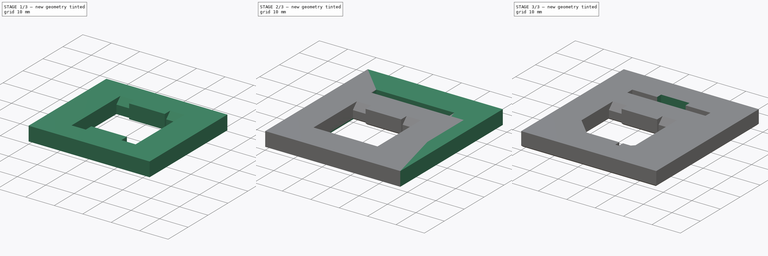
[diagram: build sequence overview — one tinted view per stage of 3, left to right]
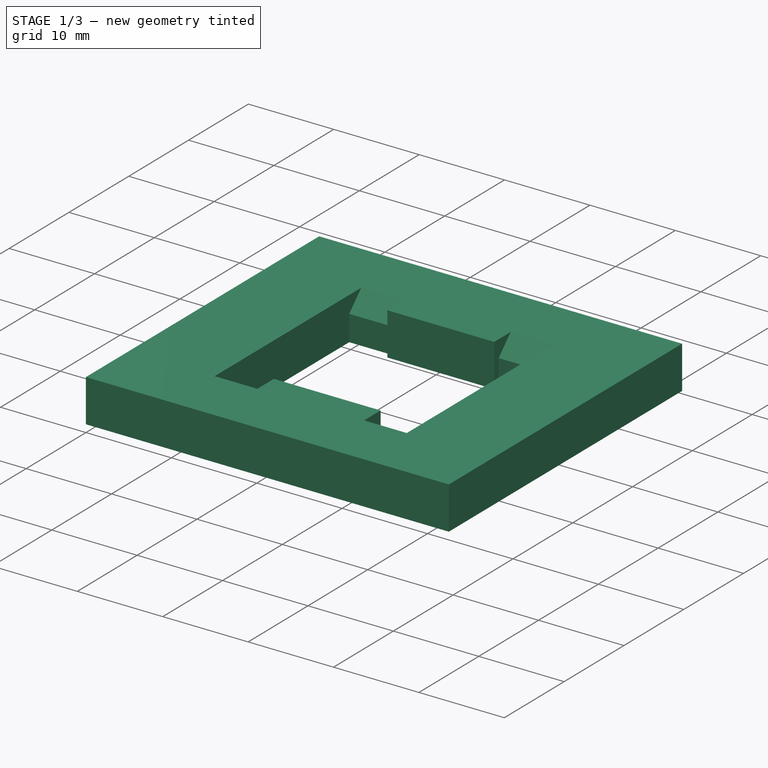
[diagram: stage 1 of 3 — iso view after this stage's code; geometry added in this stage tinted green]
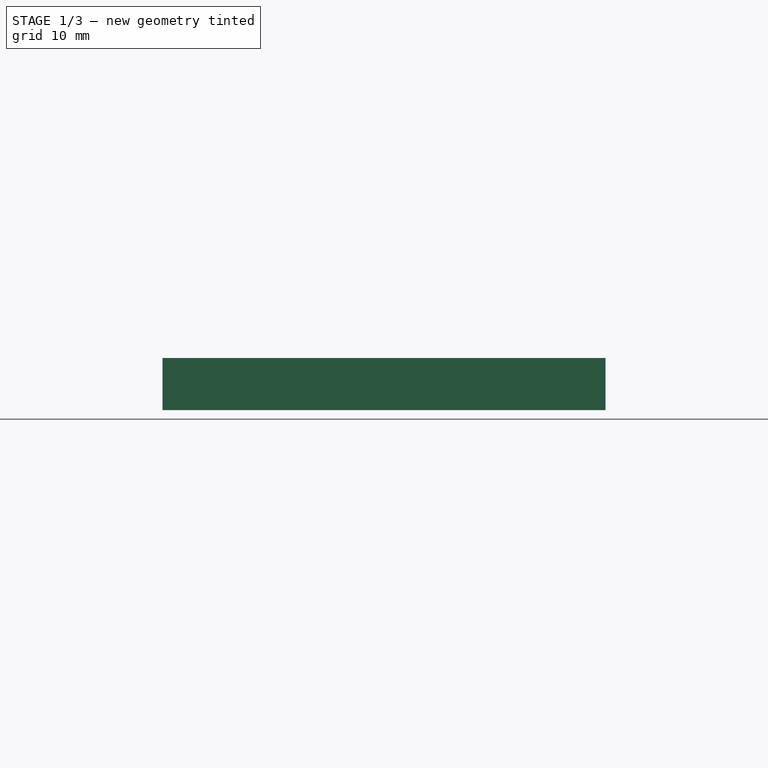
[diagram: stage 1 of 3 — front view after this stage's code; geometry added in this stage tinted green]
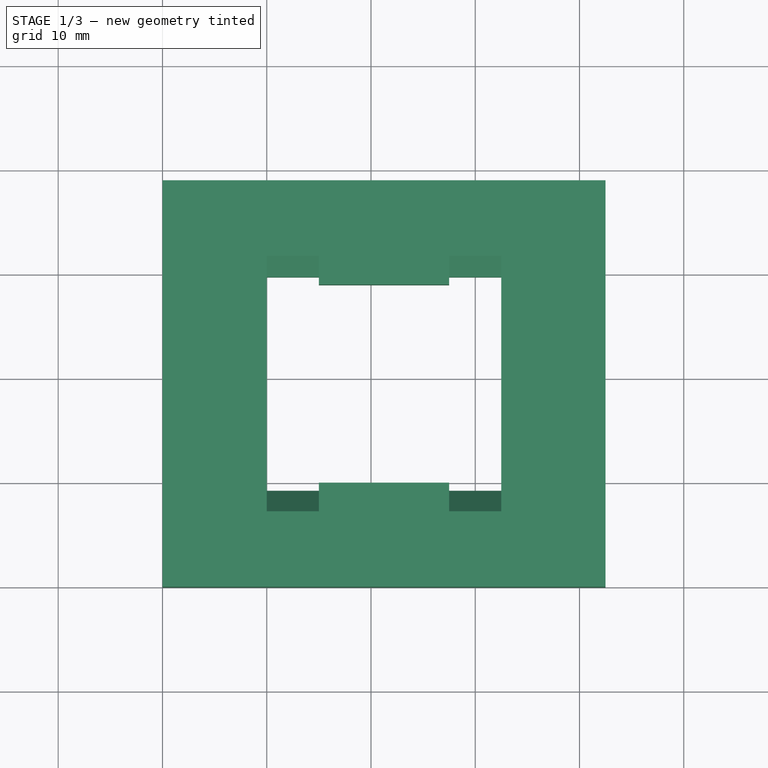
[diagram: stage 1 of 3 — top view after this stage's code; geometry added in this stage tinted green]
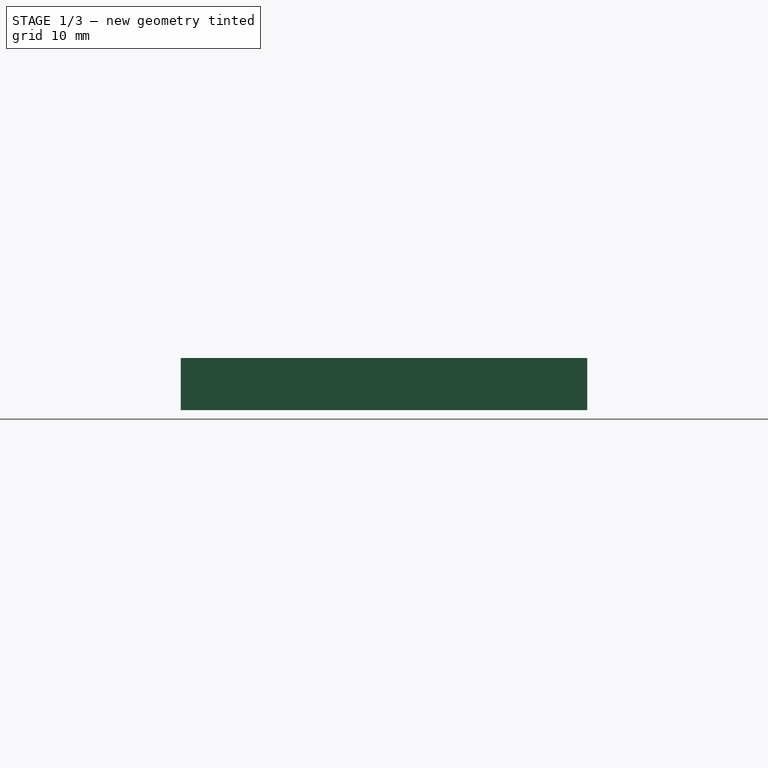
[diagram: stage 1 of 3 — right view after this stage's code; geometry added in this stage tinted green]
FCSTD DOCUMENT  (FreeCAD 0.19R24291 (Git))
Label: outlet-and-switch-size-test
License: All rights reserved
LicenseURL: http://en.wikipedia.org/wiki/All_rights_reserved
objects: Sketcher::SketchObject×4, PartDesign::Chamfer×4, PartDesign::Pad×2, PartDesign::Pocket×2, PartDesign::Body×2
note: 22 computed .brp shape members not serialized (recipe doc carries the construction recipe); baked Part::Feature solids carry a one-line shape summary decoded from their .brp

FEATURE [PartDesign::Body] Body  label="outlet"
  Group = -> [Sketch,Pad,Chamfer,Sketch001,Pocket,Chamfer001]
  Origin = -> Origin
  Tip = -> Chamfer001
FEATURE [Sketcher::SketchObject] Sketch002
  FullyConstrained = true
  MapMode = 5
  Support = -> [XY_Plane001]
  sketch-geometry (8):
    g0: LineSegment StartX=0 StartY=0 StartZ=0 EndX=22.5 EndY=0 EndZ=0
    g1: LineSegment StartX=22.5 StartY=0 StartZ=0 EndX=22.5 EndY=19 EndZ=0
    g2: LineSegment StartX=22.5 StartY=19 StartZ=0 EndX=0 EndY=19 EndZ=0
    g3: LineSegment StartX=0 StartY=19 StartZ=0 EndX=0 EndY=0 EndZ=0
    g4: LineSegment StartX=-10 StartY=29 StartZ=0 EndX=32.5 EndY=29 EndZ=0
    g5: LineSegment StartX=32.5 StartY=29 StartZ=0 EndX=32.5 EndY=-10 EndZ=0
    g6: LineSegment StartX=32.5 StartY=-10 StartZ=0 EndX=-10 EndY=-10 EndZ=0
    g7: LineSegment StartX=-10 StartY=-10 StartZ=0 EndX=-10 EndY=29 EndZ=0
  constraints (23):
    c: Coincident(g0,g1)
    c: Coincident(g1,g2)
    c: Coincident(g2,g3)
    c: Coincident(g3,g0)
    c: Horizontal(g0)
    c: Horizontal(g2)
    c: Vertical(g1)
    c: Vertical(g3)
    c: Coincident(g0,g-1)
    c: DistanceX(g2,g2) = 22.5
    c: DistanceY(g1,g1) = 19
    c: Coincident(g4,g5)
    c: Coincident(g5,g6)
    c: Coincident(g6,g7)
    c: Coincident(g7,g4)
    c: Horizontal(g4)
    c: Horizontal(g6)
    c: Vertical(g5)
    c: Vertical(g7)
    c: DistanceX(g4,g2) = 10
    c: DistanceX(g0,g5) = 10
    c: DistanceY(g1,g4) = 10
    c: DistanceY(g6,g0) = 10
FEATURE [PartDesign::Pad] Pad001
  Direction = (1,1,1)
  Length = 5
  Length2 = 100
  Profile = -> Sketch002
  Type = 0
FEATURE [Sketcher::SketchObject] Sketch003
  ExternalGeometry = -> [Pad001]
  FullyConstrained = true
  MapMode = 5
  Placement = pos=(0,0,5) rot=(0,0,1;0rad)
  Support = -> [Pad001]
  sketch-geometry (16):
    g0: LineSegment StartX=0 StartY=19 StartZ=0 EndX=5 EndY=19 EndZ=0
    g1: LineSegment StartX=5 StartY=19 StartZ=0 EndX=5 EndY=19.75 EndZ=0
    g2: LineSegment StartX=5 StartY=19.75 StartZ=0 EndX=0 EndY=19.75 EndZ=0
    g3: LineSegment StartX=0 StartY=19.75 StartZ=0 EndX=0 EndY=19 EndZ=0
    g4: LineSegment StartX=22.5 StartY=19 StartZ=0 EndX=17.5 EndY=19 EndZ=0
    g5: LineSegment StartX=17.5 StartY=19 StartZ=0 EndX=17.5 EndY=19.75 EndZ=0
    g6: LineSegment StartX=17.5 StartY=19.75 StartZ=0 EndX=22.5 EndY=19.75 EndZ=0
    g7: LineSegment StartX=22.5 StartY=19.75 StartZ=0 EndX=22.5 EndY=19 EndZ=0
    g8: LineSegment StartX=0 StartY=0 StartZ=0 EndX=5 EndY=0 EndZ=0
    g9: LineSegment StartX=5 StartY=0 StartZ=0 EndX=5 EndY=-0.75 EndZ=0
    g10: LineSegment StartX=5 StartY=-0.75 StartZ=0 EndX=0 EndY=-0.75 EndZ=0
    g11: LineSegment StartX=0 StartY=-0.75 StartZ=0 EndX=0 EndY=0 EndZ=0
    g12: LineSegment StartX=22.5 StartY=0 StartZ=0 EndX=17.5 EndY=0 EndZ=0
    g13: LineSegment StartX=17.5 StartY=0 StartZ=0 EndX=17.5 EndY=-0.75 EndZ=0
    g14: LineSegment StartX=17.5 StartY=-0.75 StartZ=0 EndX=22.5 EndY=-0.75 EndZ=0
    g15: LineSegment StartX=22.5 StartY=-0.75 StartZ=0 EndX=22.5 EndY=0 EndZ=0
  constraints (44):
    c: Coincident(g0,g1)
    c: Coincident(g1,g2)
    c: Coincident(g2,g3)
    c: Coincident(g3,g0)
    c: Horizontal(g0)
    c: Horizontal(g2)
    c: Vertical(g1)
    c: Vertical(g3)
    c: Coincident(g0,g-3)
    c: Coincident(g4,g5)
    c: Coincident(g5,g6)
    c: Coincident(g6,g7)
    c: Coincident(g7,g4)
    c: Horizontal(g4)
    c: Horizontal(g6)
    c: Vertical(g5)
    c: Vertical(g7)
    c: Coincident(g4,g-3)
    c: Coincident(g8,g9)
    c: Coincident(g9,g10)
    c: Coincident(g10,g11)
    c: Coincident(g11,g8)
    c: Horizontal(g8)
    c: Horizontal(g10)
    c: Vertical(g9)
    c: Vertical(g11)
    c: Coincident(g8,g-1)
    c: Coincident(g12,g13)
    c: Coincident(g13,g14)
    c: Coincident(g14,g15)
    c: Coincident(g15,g12)
    c: Horizontal(g12)
    c: Horizontal(g14)
    c: Vertical(g13)
    c: Vertical(g15)
    c: Coincident(g12,g-4)
    c: Equal(g10,g14)
    c: Equal(g14,g6)
    c: Equal(g6,g2)
    c: Horizontal(g1,g5)
    c: Equal(g5,g13)
    c: Equal(g13,g9)
    c: DistanceX(g2,g2) = 5
    c: DistanceY(g7,g7) = 0.75
FEATURE [PartDesign::Pocket] Pocket001
  BaseFeature = -> Pad001
  Length = 5
  Length2 = 100
  Profile = -> Sketch003
  Refine = true
  Type = 1
FEATURE [PartDesign::Chamfer] Chamfer002
  Angle = 45
  Base = -> Pocket001 [Edge25,Edge35,Edge31,Edge29]
  BaseFeature = -> Pocket001
  ChamferType = 0
  FlipDirection = false
  Size = 2
  Size2 = 1
  SupportTransform = false
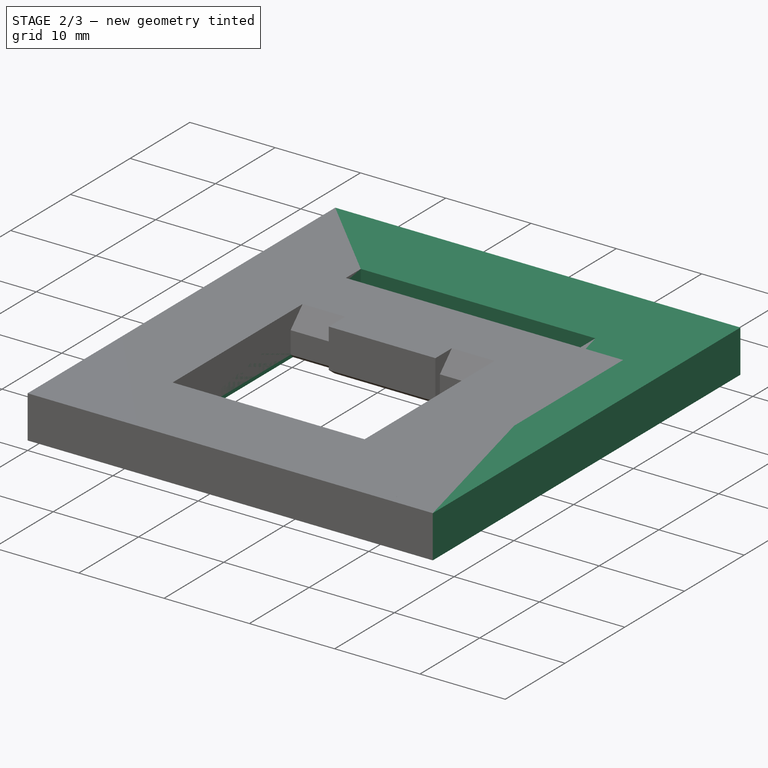
[diagram: stage 2 of 3 — iso view after this stage's code; geometry added in this stage tinted green]
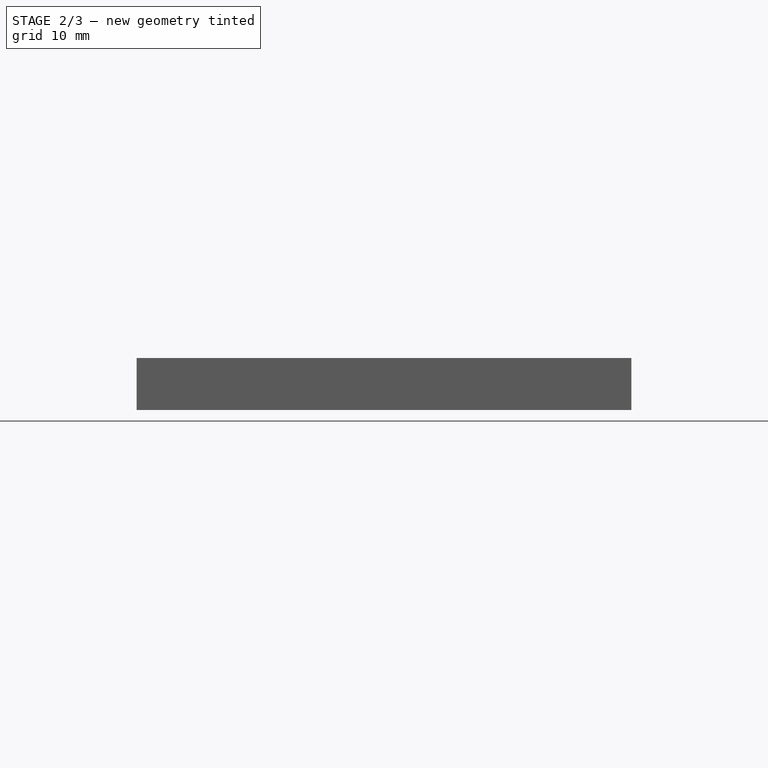
[diagram: stage 2 of 3 — front view after this stage's code; geometry added in this stage tinted green]
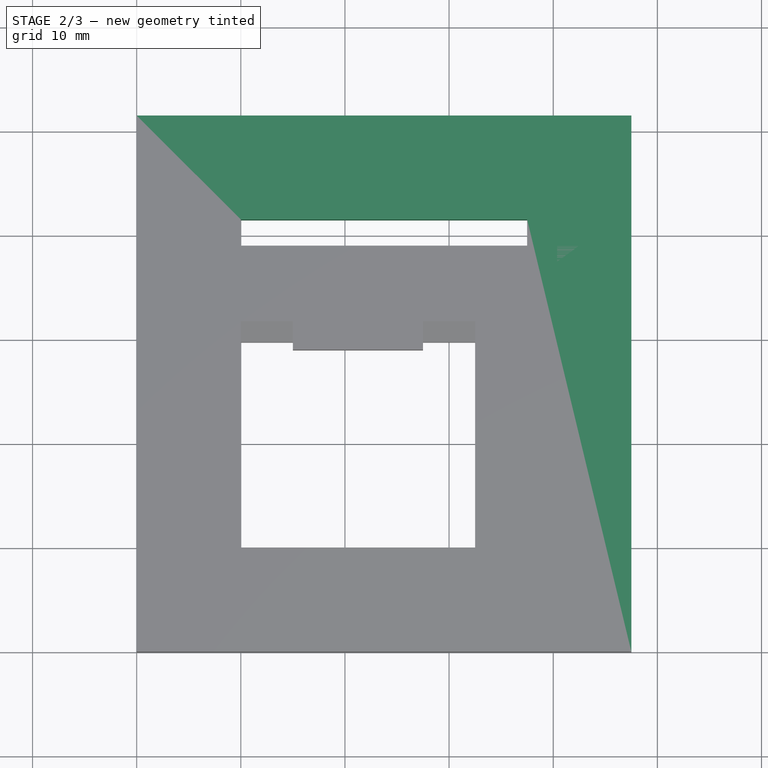
[diagram: stage 2 of 3 — top view after this stage's code; geometry added in this stage tinted green]
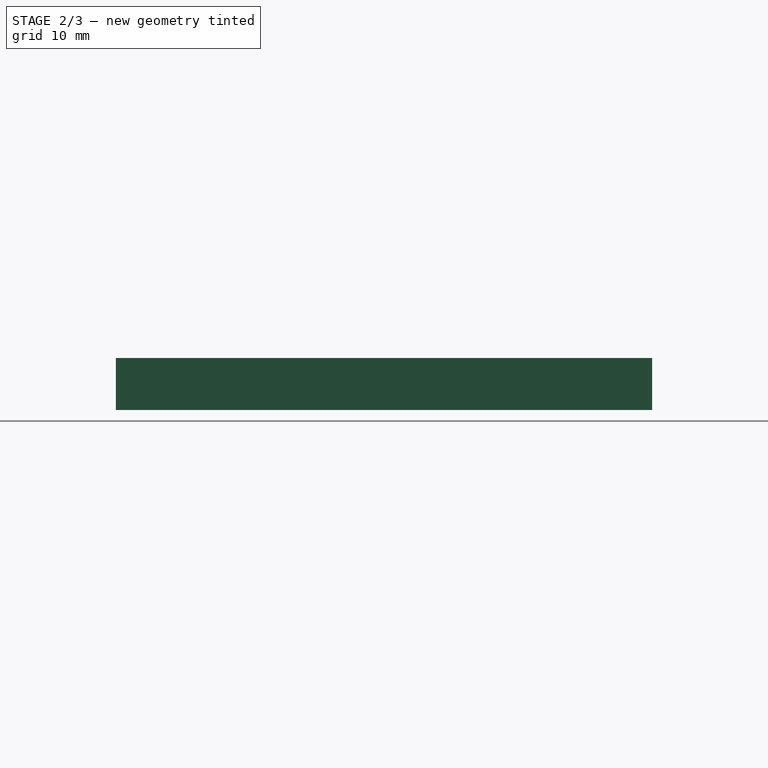
[diagram: stage 2 of 3 — right view after this stage's code; geometry added in this stage tinted green]
FEATURE [Sketcher::SketchObject] Sketch
  FullyConstrained = true
  MapMode = 5
  Support = -> [XY_Plane]
  sketch-geometry (8):
    g0: LineSegment StartX=0 StartY=0 StartZ=0 EndX=27.5 EndY=0 EndZ=0
    g1: LineSegment StartX=27.5 StartY=0 StartZ=0 EndX=27.5 EndY=31.5 EndZ=0
    g2: LineSegment StartX=27.5 StartY=31.5 StartZ=0 EndX=0 EndY=31.5 EndZ=0
    g3: LineSegment StartX=0 StartY=31.5 StartZ=0 EndX=0 EndY=0 EndZ=0
    g4: LineSegment StartX=-10 StartY=41.5 StartZ=0 EndX=37.5 EndY=41.5 EndZ=0
    g5: LineSegment StartX=37.5 StartY=41.5 StartZ=0 EndX=37.5 EndY=-10 EndZ=0
    g6: LineSegment StartX=37.5 StartY=-10 StartZ=0 EndX=-10 EndY=-10 EndZ=0
    g7: LineSegment StartX=-10 StartY=-10 StartZ=0 EndX=-10 EndY=41.5 EndZ=0
  constraints (23):
    c: Coincident(g0,g1)
    c: Coincident(g1,g2)
    c: Coincident(g2,g3)
    c: Coincident(g3,g0)
    c: Horizontal(g0)
    c: Horizontal(g2)
    c: Vertical(g1)
    c: Vertical(g3)
    c: Coincident(g0,g-1)
    c: Coincident(g4,g5)
    c: Coincident(g5,g6)
    c: Coincident(g6,g7)
    c: Coincident(g7,g4)
    c: Horizontal(g4)
    c: Horizontal(g6)
    c: Vertical(g5)
    c: Vertical(g7)
    c: DistanceX(g4,g2) = 10
    c: DistanceX(g1,g4) = 10
    c: DistanceY(g2,g4) = 10
    c: DistanceY(g6,g0) = 10
    c: DistanceX(g2,g2) = 27.5
    c: DistanceY(g1,g1) = 31.5
FEATURE [PartDesign::Pad] Pad
  Direction = (1,1,1)
  Length = 5
  Length2 = 100
  Profile = -> Sketch
  Type = 0
FEATURE [PartDesign::Chamfer] Chamfer003
  Angle = 45
  Base = -> Chamfer002 [Face19]
  BaseFeature = -> Chamfer002
  ChamferType = 0
  FlipDirection = false
  Size = 0.4
  Size2 = 1
  SupportTransform = false
FEATURE [PartDesign::Body] Body001
  Group = -> [Sketch002,Pad001,Sketch003,Pocket001,Chamfer002,Chamfer003]
  Origin = -> Origin001
  Tip = -> Chamfer003
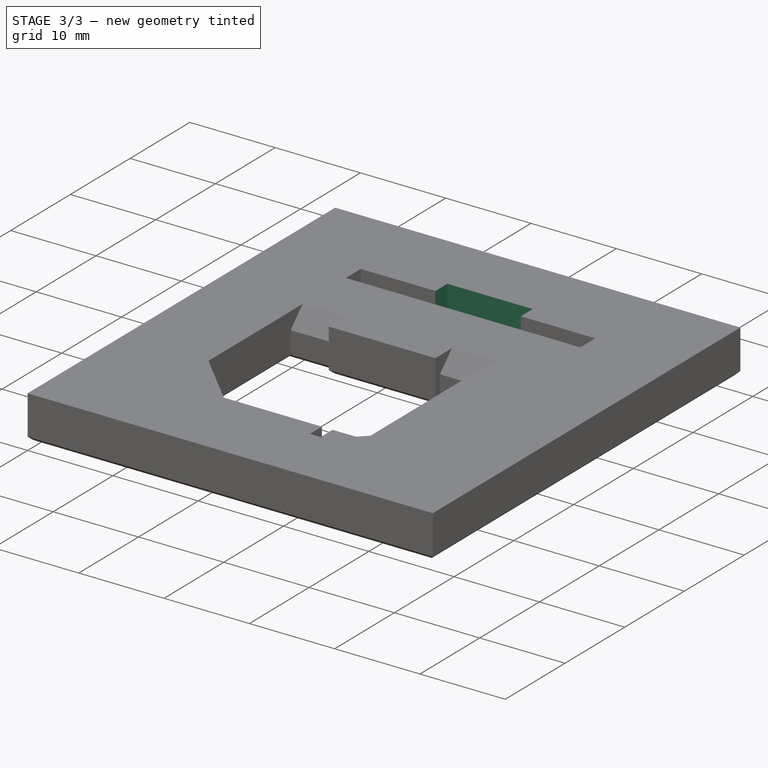
[diagram: stage 3 of 3 — iso view after this stage's code; geometry added in this stage tinted green]
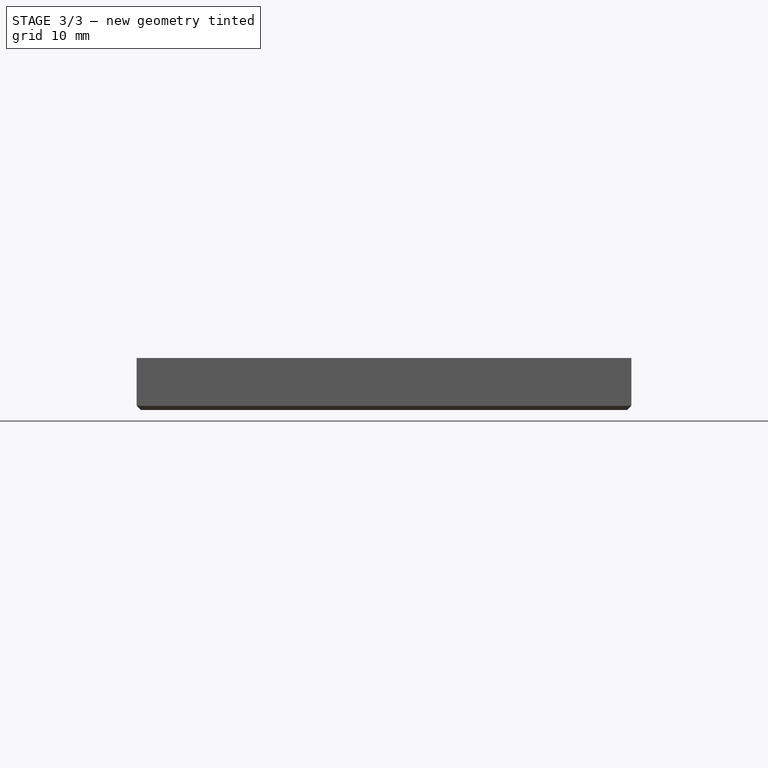
[diagram: stage 3 of 3 — front view after this stage's code; geometry added in this stage tinted green]
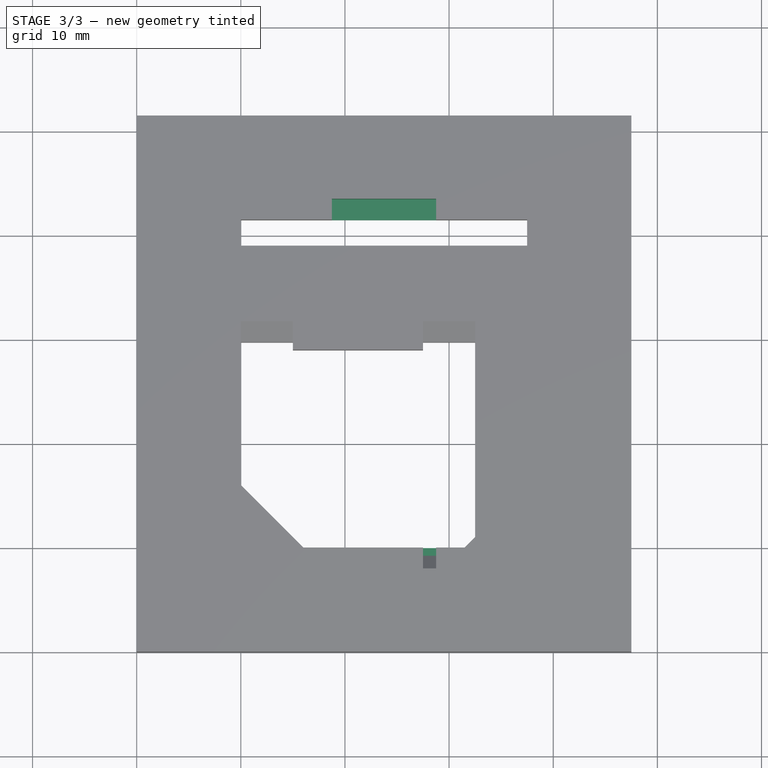
[diagram: stage 3 of 3 — top view after this stage's code; geometry added in this stage tinted green]
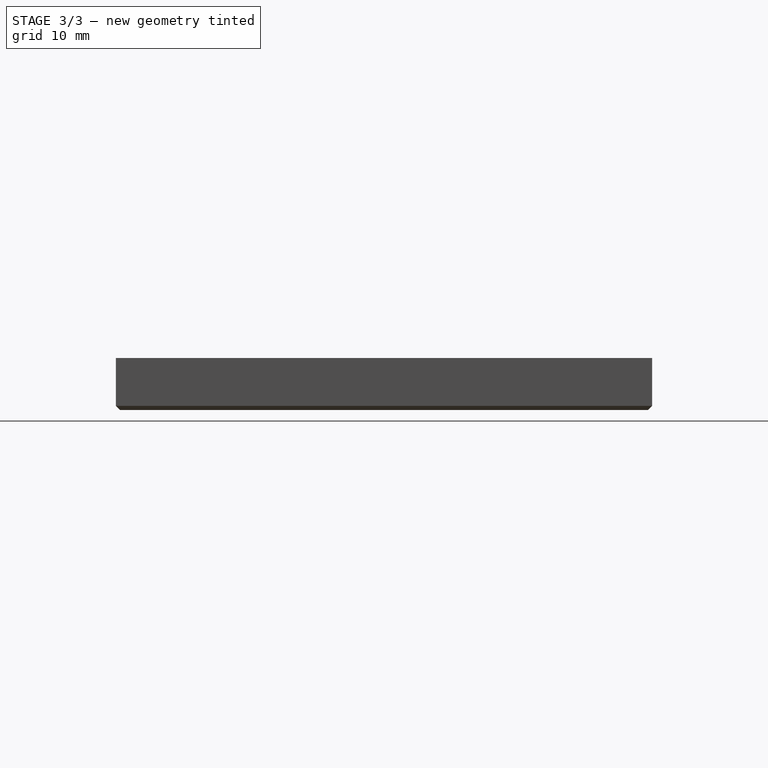
[diagram: stage 3 of 3 — right view after this stage's code; geometry added in this stage tinted green]
FEATURE [PartDesign::Chamfer] Chamfer
  Angle = 45
  Base = -> Pad [Edge13,Edge14]
  BaseFeature = -> Pad
  ChamferType = 0
  FlipDirection = false
  Size = 6
  Size2 = 1
  SupportTransform = false
FEATURE [Sketcher::SketchObject] Sketch001
  ExternalGeometry = -> [Chamfer]
  FullyConstrained = true
  MapMode = 5
  Placement = pos=(0,0,5) rot=(0,0,1;0rad)
  Support = -> [Chamfer]
  sketch-geometry (10):
    g0: LineSegment StartX=8.75 StartY=31.5 StartZ=0 EndX=18.75 EndY=31.5 EndZ=0
    g1: LineSegment StartX=18.75 StartY=31.5 StartZ=0 EndX=18.75 EndY=33.5 EndZ=0
    g2: LineSegment StartX=18.75 StartY=33.5 StartZ=0 EndX=8.75 EndY=33.5 EndZ=0
    g3: LineSegment StartX=8.75 StartY=33.5 StartZ=0 EndX=8.75 EndY=31.5 EndZ=0
    g4: LineSegment StartX=8.75 StartY=0 StartZ=0 EndX=18.75 EndY=0 EndZ=0
    g5: LineSegment StartX=18.75 StartY=0 StartZ=0 EndX=18.75 EndY=-2 EndZ=0
    g6: LineSegment StartX=18.75 StartY=-2 StartZ=0 EndX=8.75 EndY=-2 EndZ=0
    g7: LineSegment StartX=8.75 StartY=-2 StartZ=0 EndX=8.75 EndY=0 EndZ=0
    g8: LineSegment StartX=0 StartY=31.5 StartZ=0 EndX=8.75 EndY=31.5 EndZ=0
    g9: LineSegment StartX=18.75 StartY=31.5 StartZ=0 EndX=27.5 EndY=31.5 EndZ=0
  constraints (28):
    c: Coincident(g0,g1)
    c: Coincident(g1,g2)
    c: Coincident(g2,g3)
    c: Coincident(g3,g0)
    c: Horizontal(g0)
    c: Horizontal(g2)
    c: Vertical(g1)
    c: Vertical(g3)
    c: PointOnObject(g0,g-3)
    c: Coincident(g4,g5)
    c: Coincident(g5,g6)
    c: Coincident(g6,g7)
    c: Coincident(g7,g4)
    c: Horizontal(g4)
    c: Horizontal(g6)
    c: Vertical(g5)
    c: Vertical(g7)
    c: PointOnObject(g4,g-1)
    c: DistanceX(g2,g2) = 10
    c: Vertical(g0,g6)
    c: Vertical(g0,g5)
    c: Coincident(g8,g-3)
    c: Coincident(g8,g0)
    c: Coincident(g9,g0)
    c: Coincident(g9,g-3)
    c: Equal(g8,g9)
    c: Equal(g3,g7)
    c: DistanceY(g3,g3) = 2
FEATURE [PartDesign::Pocket] Pocket
  BaseFeature = -> Chamfer
  Length = 3.5
  Length2 = 100
  Profile = -> Sketch001
  Type = 0
FEATURE [PartDesign::Chamfer] Chamfer001
  Angle = 45
  Base = -> Pocket [Face2]
  BaseFeature = -> Pocket
  ChamferType = 0
  FlipDirection = false
  Size = 0.4
  Size2 = 1
  SupportTransform = false
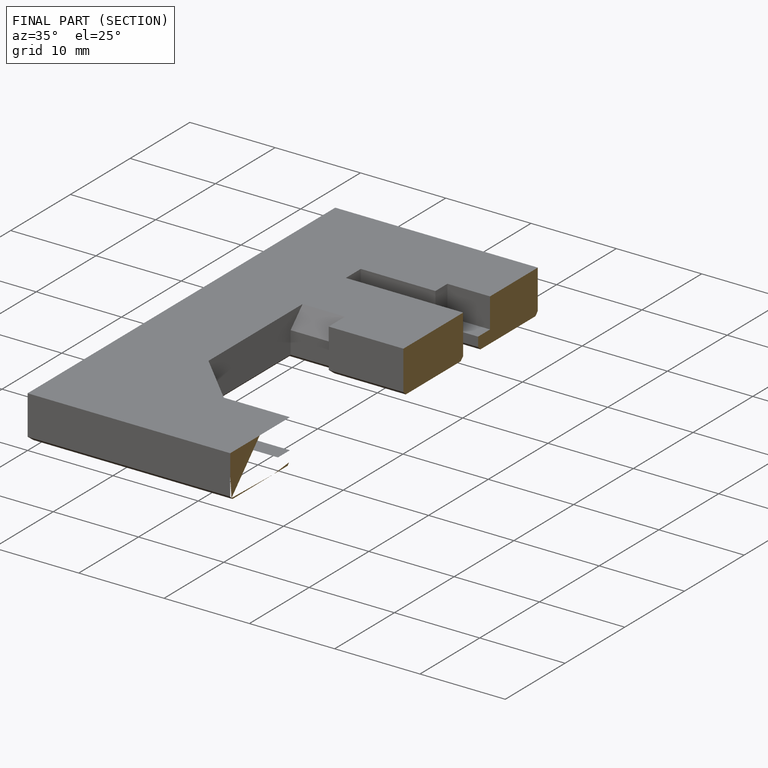
[diagram: finished part — half-section view (interior)]
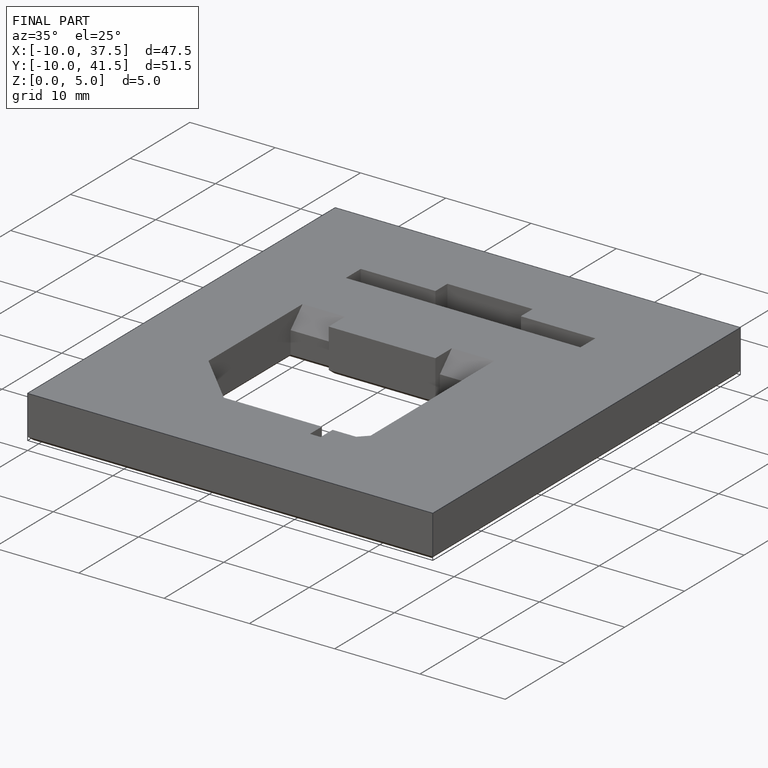
[diagram: finished part — iso view with bounding-box wireframe]
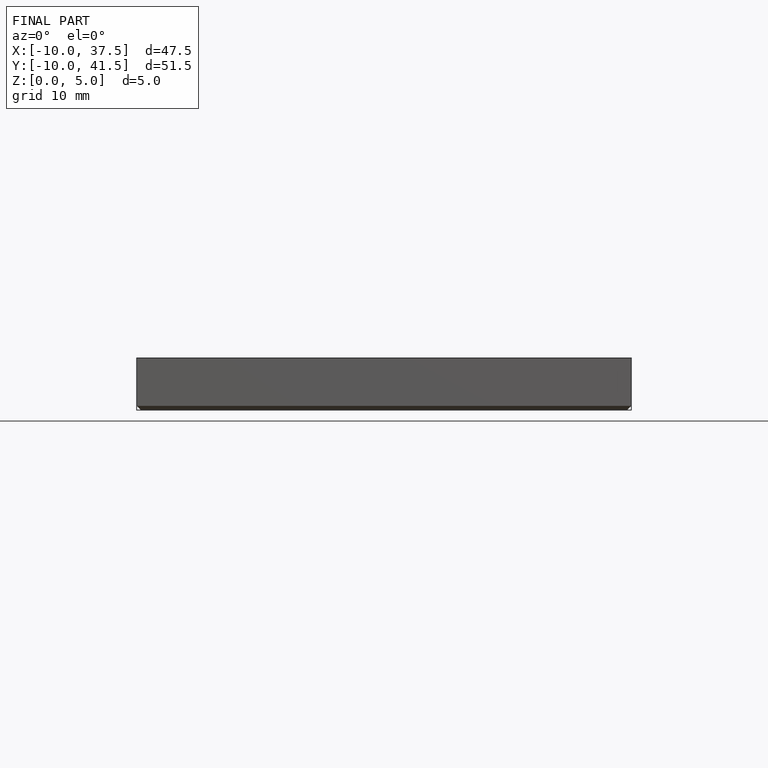
[diagram: finished part — front view with bounding-box wireframe]
